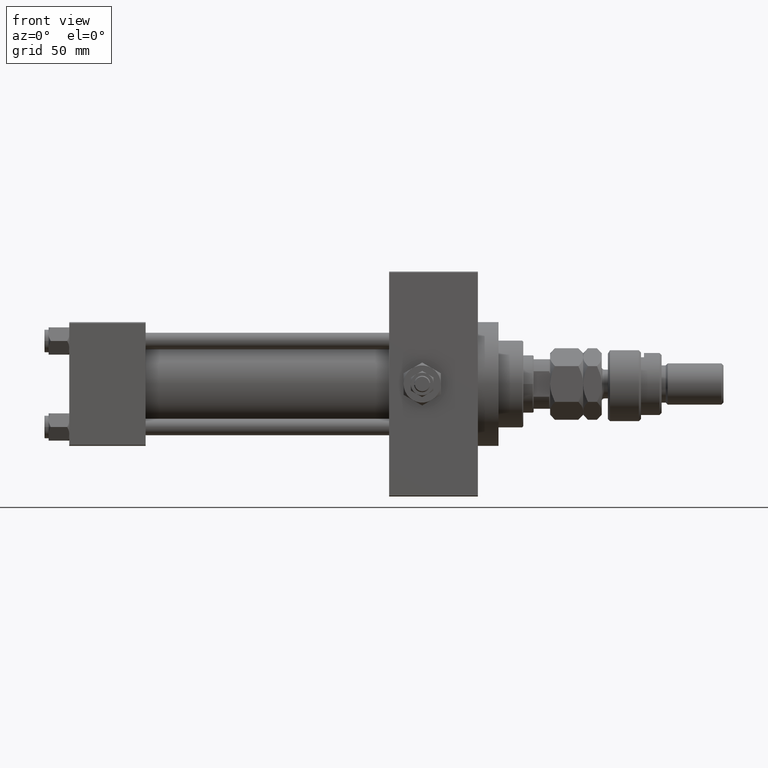
[diagram: clean part render]
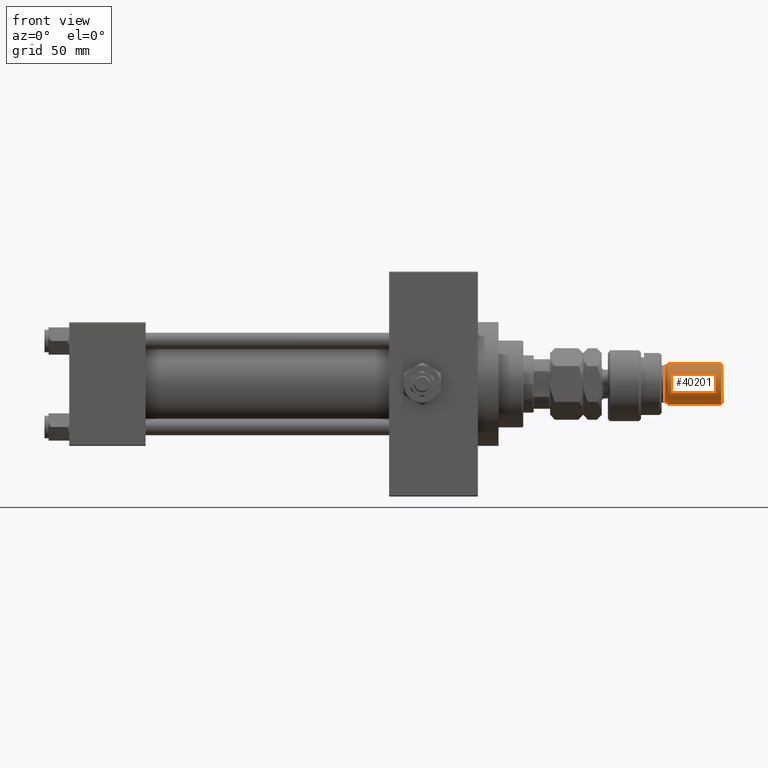
[diagram: same view with one face highlighted and labeled with its STEP entity id]
A machine part, front view. The second image highlights one B-rep face of the part: STEP entity #40201.
In plain terms, the highlighted cylindrical surface (edge-blend (fillet) strip) has radius 10 mm, axis along (-1, -0, 0).
Its self-contained STEP definition (entity closure, byte-faithful):
#1123 = VERTEX_POINT ( 'NONE', #46963 ) ;
#1833 = EDGE_CURVE ( 'NONE', #1123, #25112, #36299, .T. ) ;
#2691 = EDGE_CURVE ( 'NONE', #44130, #25112, #16523, .T. ) ;
#4596 = DIRECTION ( 'NONE',  ( 1.000000000000000000, 0.000000000000000000, 0.000000000000000000 ) ) ;
#6307 = DIRECTION ( 'NONE',  ( -0.000000000000000000, -0.000000000000000000, -1.000000000000000000 ) ) ;
#8295 = EDGE_LOOP ( 'NONE', ( #48673, #35126, #30992, #22286 ) ) ;
#9266 = DIRECTION ( 'NONE',  ( 0.000000000000000000, 0.000000000000000000, -1.000000000000000000 ) ) ;
#10735 = DIRECTION ( 'NONE',  ( -1.000000000000000000, 0.000000000000000000, 0.000000000000000000 ) ) ;
#16523 = LINE ( 'NONE', #48317, #49687 ) ;
#17340 = CARTESIAN_POINT ( 'NONE',  ( 0.000000000000000000, 0.000000000000000000, 54.99999999999998579 ) ) ;
#17862 = CARTESIAN_POINT ( 'NONE',  ( 10.00000000000000000, 1.224646799147353256E-15, 54.99999999999998579 ) ) ;
#19237 = EDGE_CURVE ( 'NONE', #44130, #42927, #30237, .T. ) ;
#19629 = AXIS2_PLACEMENT_3D ( 'NONE', #42428, #20487, #4596 ) ;
#20487 = DIRECTION ( 'NONE',  ( -0.000000000000000000, -0.000000000000000000, 1.000000000000000000 ) ) ;
#21349 = VECTOR ( 'NONE', #39883, 1000.000000000000000 ) ;
#21389 = AXIS2_PLACEMENT_3D ( 'NONE', #22452, #6307, #10735 ) ;
#22286 = ORIENTED_EDGE ( 'NONE', *, *, #1833, .T. ) ;
#22452 = CARTESIAN_POINT ( 'NONE',  ( 0.000000000000000000, 0.000000000000000000, 56.00000000000000711 ) ) ;
#23729 = LINE ( 'NONE', #36763, #21349 ) ;
#24619 = DIRECTION ( 'NONE',  ( 1.000000000000000000, 0.000000000000000000, 0.000000000000000000 ) ) ;
#25112 = VERTEX_POINT ( 'NONE', #38584 ) ;
#25902 = CARTESIAN_POINT ( 'NONE',  ( -10.00000000000000000, 0.000000000000000000, 54.99999999999998579 ) ) ;
#27127 = FACE_OUTER_BOUND ( 'NONE', #8295, .T. ) ;
#28502 = DIRECTION ( 'NONE',  ( -0.000000000000000000, -0.000000000000000000, -1.000000000000000000 ) ) ;
#30237 = CIRCLE ( 'NONE', #49380, 10.00000000000000000 ) ;
#30992 = ORIENTED_EDGE ( 'NONE', *, *, #43849, .T. ) ;
#35126 = ORIENTED_EDGE ( 'NONE', *, *, #19237, .T. ) ;
#36299 = CIRCLE ( 'NONE', #19629, 10.00000000000000000 ) ;
#36763 = CARTESIAN_POINT ( 'NONE',  ( -10.00000000000000000, 0.000000000000000000, 56.00000000000000711 ) ) ;
#38584 = CARTESIAN_POINT ( 'NONE',  ( 10.00000000000000000, 1.224646799147353256E-15, 29.00000000000000711 ) ) ;
#39883 = DIRECTION ( 'NONE',  ( -0.000000000000000000, -0.000000000000000000, -1.000000000000000000 ) ) ;
#40201 = ADVANCED_FACE ( 'NONE', ( #27127 ), #43017, .T. ) ;
#42428 = CARTESIAN_POINT ( 'NONE',  ( 0.000000000000000000, 0.000000000000000000, 29.00000000000000711 ) ) ;
#42927 = VERTEX_POINT ( 'NONE', #25902 ) ;
#43017 = CYLINDRICAL_SURFACE ( 'NONE', #21389, 10.00000000000000000 ) ;
#43849 = EDGE_CURVE ( 'NONE', #42927, #1123, #23729, .T. ) ;
#44130 = VERTEX_POINT ( 'NONE', #17862 ) ;
#46963 = CARTESIAN_POINT ( 'NONE',  ( -10.00000000000000000, 0.000000000000000000, 29.00000000000000711 ) ) ;
#48317 = CARTESIAN_POINT ( 'NONE',  ( 10.00000000000000000, 1.224646799147353256E-15, 56.00000000000000711 ) ) ;
#48673 = ORIENTED_EDGE ( 'NONE', *, *, #2691, .F. ) ;
#49380 = AXIS2_PLACEMENT_3D ( 'NONE', #17340, #9266, #24619 ) ;
#49687 = VECTOR ( 'NONE', #28502, 1000.000000000000000 ) ;